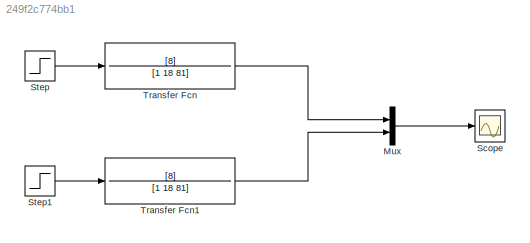
MODEL slx_249f2c774bb1
KIND model
CONFIG AbsTol = auto
CONFIG EnableMultiTasking = off
CONFIG FixedStep = auto
CONFIG MaxStep = auto
CONFIG MinStep = auto
CONFIG RelTol = 1e-3
CONFIG SampleTimeConstraint = Unconstrained
CONFIG SolverName = VariableStepAuto
CONFIG StartTime = 0.0
CONFIG StopTime = 10.0
BLOCK [Mux] Mux
  DisplayOption = bar
  Inputs = 2
BLOCK [Scope] Scope
  Floating = off
  NumInputPorts = 1
  ScopeSpecificationString = Simulink.scopes.TimeScopeBlockCfg('CurrentConfiguration', extmgr.ConfigurationSet(extmgr.Configuration('Core','General UI',true),extmgr.Configuration('Core','Source UI',true),extmgr.Configuration('Sources','WiredSimulink',true),extmgr.Configuration('Visuals','Time Domain',true,'SerializedDisplays',{struct('MinYLimReal','-0.06173','MaxYLimReal','0.55556','YLabelReal','','MinYLimMag','0.00000','MaxY...<+1348ch>
BLOCK [Step] Step
  SampleTime = 0
BLOCK [Step] Step1
  After = 5
  SampleTime = 0
BLOCK [TransferFcn] Transfer Fcn
  Denominator = [1 18 81]
  Numerator = [8]
BLOCK [TransferFcn] Transfer Fcn1
  Denominator = [1 18 81]
  Numerator = [8]
LINE Mux:1 -> Scope:1
LINE Step1:1 -> Transfer Fcn1:1
LINE Step:1 -> Transfer Fcn:1
LINE Transfer Fcn1:1 -> Mux:2
LINE Transfer Fcn:1 -> Mux:1
